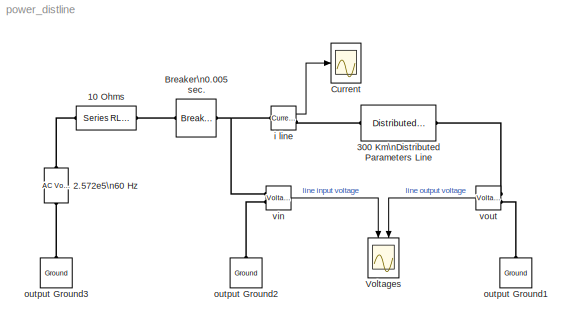
MODEL power_distline
KIND model
BLOCK [Reference] 10 Ohms  REF=powerlib/Elements/Series RLC Branch
  AttributesFormatString = \\n
  Capacitance = inf
  Inductance = 0
  LConnTagsString = __new0
  LeftPortType = p1
  Measurements = None
  PhysicalDomain = powersysdomain
  Ports = [0, 0, 0, 0, 0, 1, 1]
  RConnTagsString = __new0
  Resistance = 10
  RightPortType = p1
  SourceBlock = powerlib/Elements/Series RLC Branch
  SourceType = Series RLC Branch
  SubClassName = unknown
BLOCK [Reference] 2.572e5\n60 Hz   REF=powerlib/Electrical\nSources/AC Voltage Source
  Amplitude = (315e3*sqrt(2))/sqrt(30)
  AttributesFormatString = \\n
  Description = source block
  Frequency = 60
  Measurements = None
  Phase = 0
  Ports = [0, 0, 0, 0, 0, 1, 1]
  SampleTime = 0
  ShowPortLabels = on
  SourceBlock = powerlib/Electrical\nSources/AC Voltage Source
  SourceType = AC Voltage Source
BLOCK [Reference] 300 Km\nDistributed Parameters Line  REF=powerlib/Elements/Distributed Parameters Line
  AttributesFormatString = \\n
  Capacitance = 8.6e-9
  Frequency = 60
  Inductance = 2.0e-3
  Length = 300
  Measurements = None
  Phases = 1
  Ports = [0, 0, 0, 0, 0, 1, 1]
  Resistance = 0.2568
  ShowPortLabels = on
  SourceBlock = powerlib/Elements/Distributed Parameters Line
  SourceType = Distributed Parameters Line
  x1 = [0 -1.992e-09;0.0002737 -2.609e-09;0.0005474 -3.197e-09;0.0008212 -3.752e-09;0.001095 -4.267e-09;0.001369 -4.736e-09]
  x2 = [0 -1.992e-09;0.0002737 -2.609e-09;0.0005474 -3.197e-09;0.0008212 -3.752e-09;0.001095 -4.267e-09;0.001369 -4.736e-09]
  x3 = [0 -8.754e-13;0.0002737 -2.116e-12;0.0005474 -3.334e-12;0.0008212 -4.517e-12;0.001095 -5.651e-12;0.001369 -6.726e-12]
  x4 = [0 -8.754e-13;0.0002737 -2.116e-12;0.0005474 -3.334e-12;0.0008212 -4.517e-12;0.001095 -5.651e-12;0.001369 -6.726e-12]
  x5 = 0.001369
BLOCK [Reference] Breaker\n0.005 sec.  REF=powerlib/Elements/Breaker
  AttributesFormatString = \\n
  BreakerResistance = 1e-1
  External = off
  InitialState = 0
  Measurements = None
  Ports = [0, 0, 0, 0, 0, 1, 1]
  ShowPortLabels = on
  SnubberCapacitance = 0
  SnubberResistance = inf
  SourceBlock = powerlib/Elements/Breaker
  SourceType = Breaker
  SwitchingTimes = [ .005 ]
BLOCK [Scope] Current
  DataFormat = Array
  LimitDataPoints = off
  NumInputPorts = 1
  Ports = [1]
  TickLabels = on
  TimeRange = 0.05
  YMax = 100000
  YMin = -100000
BLOCK [Scope] Voltages
  DataFormat = Array
  MaxDataPoints = 5000000
  NumInputPorts = 2
  Ports = [2]
  TickLabels = on
  TimeRange = 0.1
  YMax = 100000~200000
  YMin = -100000~-200000
BLOCK [Reference] i line  REF=powerlib/Measurements/Current Measurement
  AttributesFormatString = \\n
  OutputType = Magnitude
  PSBequivalent = 0
  PhasorSimulation = off
  Ports = [0, 1, 0, 0, 0, 1, 1]
  ShowPortLabels = on
  SourceBlock = powerlib/Measurements/Current Measurement
  SourceType = Current Measurement
  Tag = PoWeRsYsTeMmEaSuReMeNt
BLOCK [Reference] output Ground1  REF=powerlib/Elements/Ground
  AttributesFormatString = \\n
  LConnTagsString = a
  LeftPortType = p1
  PhysicalDomain = powersysdomain
  Ports = [0, 0, 0, 0, 0, 1, 1]
  RConnTagsString = __newr0
  RightPortType = p1
  SourceBlock = powerlib/Elements/Ground
  SourceType = Ground
  SubClassName = unknown
BLOCK [Reference] output Ground2  REF=powerlib/Elements/Ground
  AttributesFormatString = \\n
  LConnTagsString = a
  LeftPortType = p1
  PhysicalDomain = powersysdomain
  Ports = [0, 0, 0, 0, 0, 1, 1]
  RConnTagsString = __newr0
  RightPortType = p1
  SourceBlock = powerlib/Elements/Ground
  SourceType = Ground
  SubClassName = unknown
BLOCK [Reference] output Ground3  REF=powerlib/Elements/Ground
  AttributesFormatString = \\n
  LConnTagsString = a
  LeftPortType = p1
  PhysicalDomain = powersysdomain
  Ports = [0, 0, 0, 0, 0, 1, 1]
  RConnTagsString = __newr0
  RightPortType = p1
  SourceBlock = powerlib/Elements/Ground
  SourceType = Ground
  SubClassName = unknown
BLOCK [Reference] vin  REF=powerlib/Measurements/Voltage Measurement
  AttributesFormatString = \\n
  OutputType = Magnitude
  PSBequivalent = 0
  PhasorSimulation = off
  Ports = [0, 1, 0, 0, 0, 2]
  ShowPortLabels = on
  SourceBlock = powerlib/Measurements/Voltage Measurement
  SourceType = Voltage Measurement
  Tag = PoWeRsYsTeMmEaSuReMeNt
BLOCK [Reference] vout  REF=powerlib/Measurements/Voltage Measurement
  AttributesFormatString = \\n
  OutputType = Magnitude
  PSBequivalent = 0
  PhasorSimulation = off
  Ports = [0, 1, 0, 0, 0, 2]
  ShowPortLabels = on
  SourceBlock = powerlib/Measurements/Voltage Measurement
  SourceType = Voltage Measurement
  Tag = PoWeRsYsTeMmEaSuReMeNt
LINE i line:1 -> Current:1
LINE vin:1 -> Voltages:1
LINE vout:1 -> Voltages:2
PLINE 10 Ohms:LConn1 -- 2.572e5\n60 Hz :RConn1
PLINE 10 Ohms:RConn1 -- Breaker\n0.005 sec.:LConn1
PLINE 2.572e5\n60 Hz :LConn1 -- output Ground3:LConn1
PLINE 300 Km\nDistributed Parameters Line:LConn1 -- i line:RConn1
PLINE 300 Km\nDistributed Parameters Line:RConn1 -- vout:LConn1
PNET net1: Breaker\n0.005 sec.:RConn1 -- i line:LConn1 -- vin:LConn1
PLINE output Ground1:LConn1 -- vout:LConn2
PLINE output Ground2:LConn1 -- vin:LConn2
note: PNET lines group multi-terminal physical nets as a canonical sorted terminal list (undirected conserving connections); 2-terminal nets keep the pairwise PLINE form
